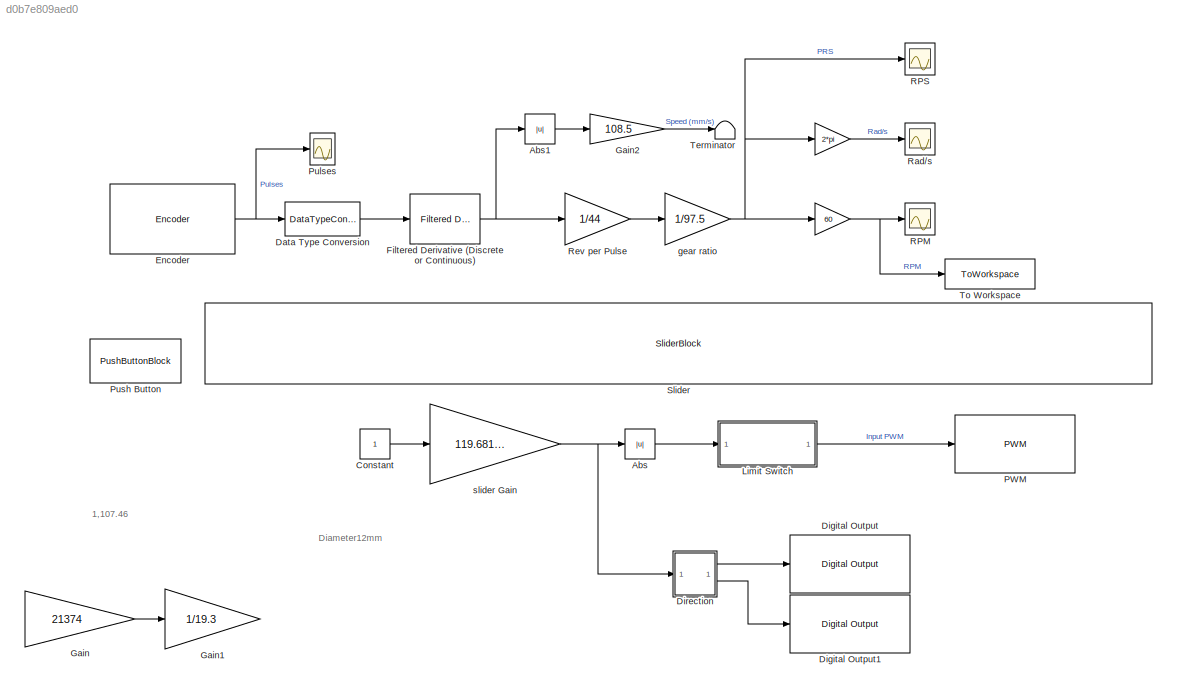
MODEL slx_d0b7e809aed0
KIND model
CONFIG AbsTol = auto
CONFIG EnableMultiTasking = on
CONFIG FixedStep = 0.0005
CONFIG MaxStep = auto
CONFIG MinStep = auto
CONFIG RelTol = 1e-3
CONFIG SampleTimeConstraint = Unconstrained
CONFIG SolverName = FixedStepDiscrete
CONFIG StartTime = 0.0
CONFIG StopTime = inf
BLOCK [Gain]  
  Gain = 60
BLOCK [Gain]    
  Gain = 2*pi
BLOCK [Abs] Abs
  SaturateOnIntegerOverflow = off
BLOCK [Abs] Abs1
  SaturateOnIntegerOverflow = off
BLOCK [Constant] Constant
BLOCK [DataTypeConversion] Data Type Conversion
  OutDataTypeStr = double
  RndMeth = Floor
  SaturateOnIntegerOverflow = off
BLOCK [Reference] Digital Output  REF=arduinolib/Digital Output
  SourceBlock = arduinolib/Digital Output
  SourceType = Arduino Digital Output
BLOCK [Reference] Digital Output1  REF=arduinolib/Digital Output
  SourceBlock = arduinolib/Digital Output
  SourceType = Arduino Digital Output
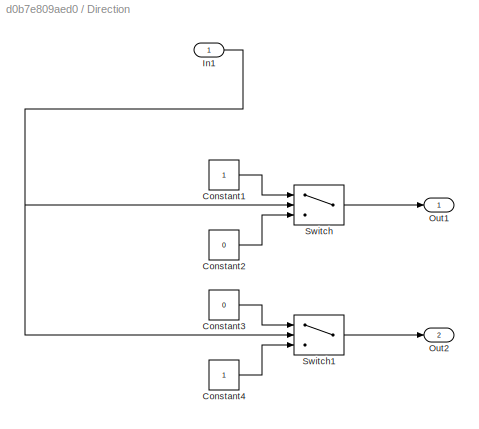
BLOCK [SubSystem] Direction
BLOCK [Constant] Direction/Constant1
BLOCK [Constant] Direction/Constant2
  Value = 0
BLOCK [Constant] Direction/Constant3
  Value = 0
BLOCK [Constant] Direction/Constant4
BLOCK [Inport] Direction/In1
BLOCK [Outport] Direction/Out1
BLOCK [Outport] Direction/Out2
  Port = 2
BLOCK [Switch] Direction/Switch
  Criteria = u2 > Threshold
  InputSameDT = off
  SaturateOnIntegerOverflow = off
BLOCK [Switch] Direction/Switch1
  Criteria = u2 > Threshold
  InputSameDT = off
  SaturateOnIntegerOverflow = off
BLOCK [Reference] Encoder  REF=arduinosensorlib/Encoder
  SourceBlock = arduinosensorlib/Encoder
  SourceType = Arduino Rotary Encoder
BLOCK [Reference] Filtered Derivative (Discrete or Continuous)  REF=eeGeneralControl/Filtered Derivative
(Discrete or Continuous)
  LibrarySourceBlock = ee_sl_lib/General Control/Filtered Derivative\n(Discrete or Continuous)
  SourceBlock = eeGeneralControl/Filtered Derivative\n(Discrete or Continuous)
  SourceType = Filtered Derivative (Discrete or Continuous)
BLOCK [Gain] Gain
  Gain = 21374
BLOCK [Gain] Gain1
  Gain = 1/19.3
BLOCK [Gain] Gain2
  Gain = 108.5
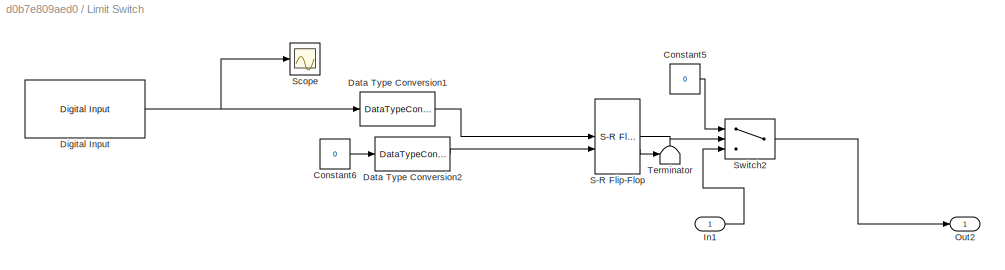
BLOCK [SubSystem] Limit Switch
BLOCK [Constant] Limit Switch/Constant5
  Value = 0
BLOCK [Constant] Limit Switch/Constant6
  Value = 0
BLOCK [DataTypeConversion] Limit Switch/Data Type Conversion1
  OutDataTypeStr = boolean
  RndMeth = Floor
  SaturateOnIntegerOverflow = off
BLOCK [DataTypeConversion] Limit Switch/Data Type Conversion2
  OutDataTypeStr = boolean
  RndMeth = Floor
  SaturateOnIntegerOverflow = off
BLOCK [Reference] Limit Switch/Digital Input  REF=arduinolib/Digital Input
  SourceBlock = arduinolib/Digital Input
  SourceType = Arduino Digital Input
BLOCK [Inport] Limit Switch/In1
BLOCK [Outport] Limit Switch/Out2
BLOCK [Reference] Limit Switch/S-R Flip-Flop  REF=simulink_extras/Flip Flops/S-R
Flip-Flop
  SourceBlock = simulink_extras/Flip Flops/S-R\nFlip-Flop
  SourceType = SRFlipFlop
BLOCK [Scope] Limit Switch/Scope
  Floating = off
  NumInputPorts = 1
  ScopeSpecificationString = Simulink.scopes.TimeScopeBlockCfg('CurrentConfiguration', extmgr.ConfigurationSet(extmgr.Configuration('Core','General UI',true),extmgr.Configuration('Core','Source UI',true),extmgr.Configuration('Sources','WiredSimulink',true,'DataLoggingVariableName','ScopeData1'),extmgr.Configuration('Visuals','Time Domain',true,'SerializedDisplays',{struct('MinYLimReal','0.9','MaxYLimReal','1.1','YLabelReal','...<+1452ch>
BLOCK [Switch] Limit Switch/Switch2
  Criteria = u2 > Threshold
  InputSameDT = off
  SaturateOnIntegerOverflow = off
BLOCK [Terminator] Limit Switch/Terminator
BLOCK [Reference] PWM  REF=arduinolib/PWM
  SourceBlock = arduinolib/PWM
  SourceType = Arduino PWM
BLOCK [Scope] Pulses
  Floating = off
  NumInputPorts = 1
  ScopeSpecificationString = Simulink.scopes.TimeScopeBlockCfg('CurrentConfiguration', extmgr.ConfigurationSet(extmgr.Configuration('Core','General UI',true),extmgr.Configuration('Core','Source UI',true),extmgr.Configuration('Sources','WiredSimulink',true),extmgr.Configuration('Visuals','Time Domain',true,'SerializedDisplays',{struct('MinYLimReal','-31374.00000','MaxYLimReal','-11374.00000','YLabelReal','','MinYLimMag','   0....<+1780ch>
BLOCK [PushButtonBlock] Push Button
  OffValue = 0.000000
BLOCK [Scope] RPM
  Floating = off
  NumInputPorts = 1
  ScopeSpecificationString = Simulink.scopes.TimeScopeBlockCfg('CurrentConfiguration', extmgr.ConfigurationSet(extmgr.Configuration('Core','General UI',true),extmgr.Configuration('Core','Source UI',true),extmgr.Configuration('Sources','WiredSimulink',true,'DataLoggingVariableName','ScopeData1'),extmgr.Configuration('Visuals','Time Domain',true,'SerializedDisplays',{struct('MinYLimReal','-1.00000','MaxYLimReal','1.00000','YLab...<+1506ch>
BLOCK [Scope] RPS
  Floating = off
  NumInputPorts = 1
  ScopeSpecificationString = Simulink.scopes.TimeScopeBlockCfg('CurrentConfiguration', extmgr.ConfigurationSet(extmgr.Configuration('Core','General UI',true),extmgr.Configuration('Core','Source UI',true),extmgr.Configuration('Sources','WiredSimulink',true,'DataLoggingVariableName','ScopeData3'),extmgr.Configuration('Visuals','Time Domain',true),extmgr.Configuration('Tools','Plot Navigation',true),extmgr.Configuration('Tools',...<+40ch>
BLOCK [Scope] Rad//s
  Floating = off
  NumInputPorts = 1
  ScopeSpecificationString = Simulink.scopes.TimeScopeBlockCfg('CurrentConfiguration', extmgr.ConfigurationSet(extmgr.Configuration('Core','General UI',true),extmgr.Configuration('Core','Source UI',true),extmgr.Configuration('Sources','WiredSimulink',true,'DataLoggingVariableName','ScopeData2'),extmgr.Configuration('Visuals','Time Domain',true),extmgr.Configuration('Tools','Plot Navigation',true),extmgr.Configuration('Tools',...<+40ch>
BLOCK [Gain] Rev per Pulse
  Gain = 1/44
BLOCK [SliderBlock] Slider
  ScaleMax = 255
  ScaleMin = -255
BLOCK [Terminator] Terminator
BLOCK [ToWorkspace] To Workspace
  FixptAsFi = on
  MaxDataPoints = inf
  SampleTime = -1
  SaveFormat = Timeseries
  VariableName = RPM
BLOCK [Gain] gear ratio
  Gain = 1/97.5
BLOCK [Gain] slider Gain
  Gain = 119.6811830753502
  ParamDataTypeStr = int16
ANNOTATION (root): 1,107.46
ANNOTATION (root): Diameter12mm
LINE    :1 -> Rad//s:1
NET  :1 -> RPM:1, To Workspace:1
LINE Abs1:1 -> Gain2:1
LINE Abs:1 -> Limit Switch:1
LINE Constant:1 -> slider Gain:1
LINE Data Type Conversion:1 -> Filtered Derivative (Discrete or Continuous):1
LINE Direction/Constant1:1 -> Direction/Switch:1
LINE Direction/Constant2:1 -> Direction/Switch:3
LINE Direction/Constant3:1 -> Direction/Switch1:1
LINE Direction/Constant4:1 -> Direction/Switch1:3
NET Direction/In1:1 -> Direction/Switch1:2, Direction/Switch:2
LINE Direction/Switch1:1 -> Direction/Out2:1
LINE Direction/Switch:1 -> Direction/Out1:1
LINE Direction:1 -> Digital Output:1
LINE Direction:2 -> Digital Output1:1
NET Encoder:1 -> Data Type Conversion:1, Pulses:1
NET Filtered Derivative (Discrete or Continuous):1 -> Abs1:1, Rev per Pulse:1
LINE Gain2:1 -> Terminator:1
LINE Gain:1 -> Gain1:1
LINE Limit Switch/Constant5:1 -> Limit Switch/Switch2:1
LINE Limit Switch/Constant6:1 -> Limit Switch/Data Type Conversion2:1
LINE Limit Switch/Data Type Conversion1:1 -> Limit Switch/S-R Flip-Flop:1
LINE Limit Switch/Data Type Conversion2:1 -> Limit Switch/S-R Flip-Flop:2
NET Limit Switch/Digital Input:1 -> Limit Switch/Data Type Conversion1:1, Limit Switch/Scope:1
LINE Limit Switch/In1:1 -> Limit Switch/Switch2:3
LINE Limit Switch/S-R Flip-Flop:1 -> Limit Switch/Switch2:2
LINE Limit Switch/S-R Flip-Flop:2 -> Limit Switch/Terminator:1
LINE Limit Switch/Switch2:1 -> Limit Switch/Out2:1
LINE Limit Switch:1 -> PWM:1
LINE Rev per Pulse:1 -> gear ratio:1
NET gear ratio:1 ->    :1,  :1, RPS:1
NET slider Gain:1 -> Abs:1, Direction:1
note: NET lines group one-source signal fan-out (src -> all destinations, sorted); 1:1 wires keep LINE
